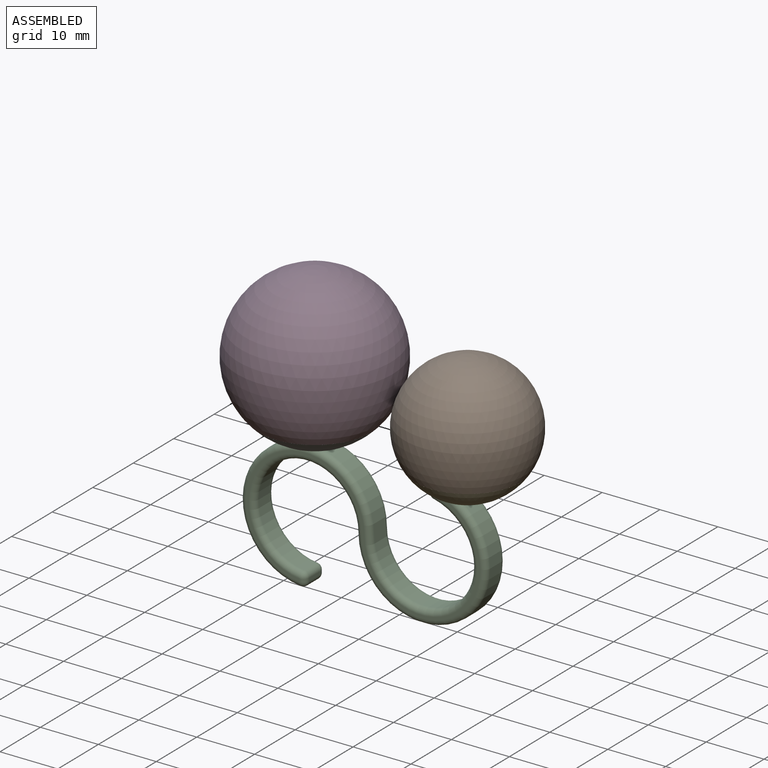
[diagram: assembled view]
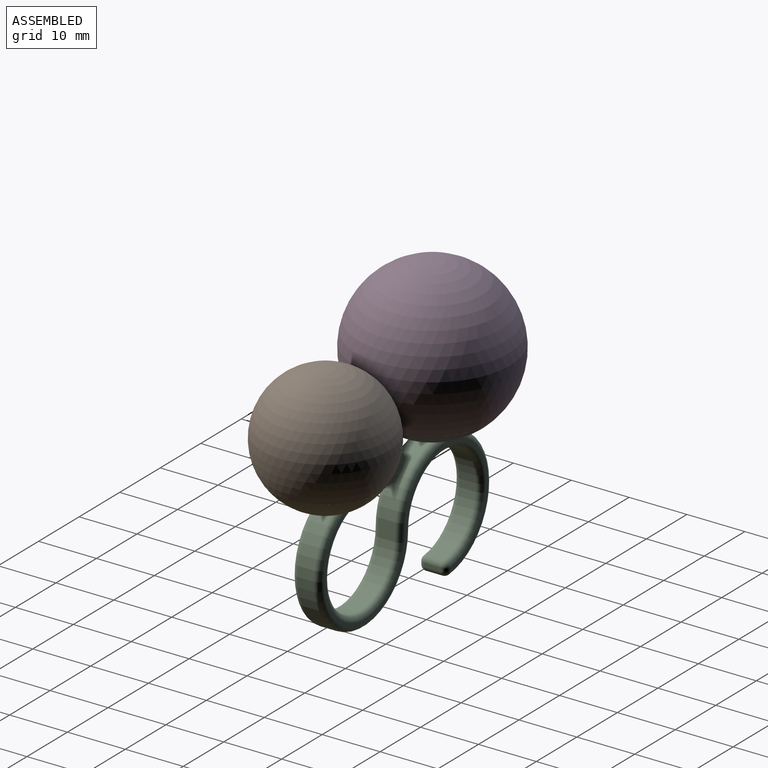
[diagram: assembled view, second angle]
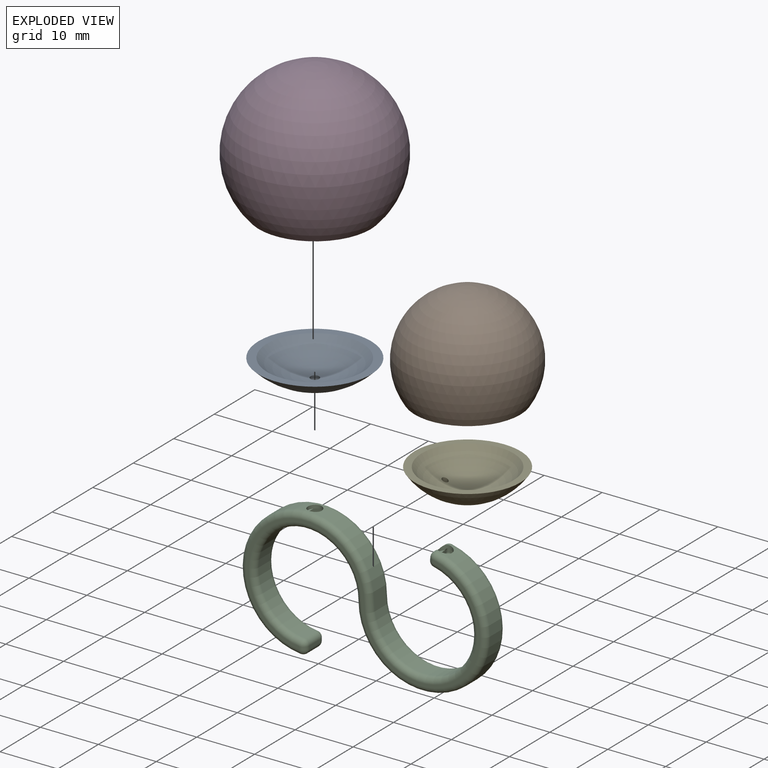
[diagram: exploded view]
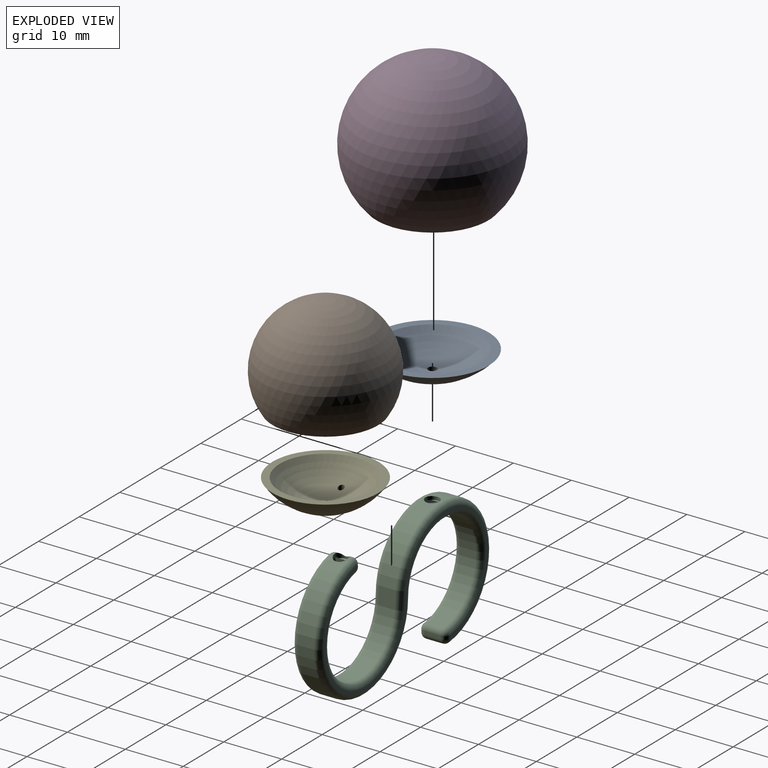
[diagram: exploded view, second angle]
ASSEMBLY  parts=5 mates=4
PART A: 5 faces, bbox 19.4x19.4x4 mm
  f0: sphere r=13.5mm, area 337mm2, adj f1,f3
  f1: plane 19.43x19.43mm, normal (0,0,1), area 81.7mm2, adj f0,f2
  f2: sphere r=12.5mm, area 243.6mm2, adj f1,f4
  f3: plane 4.05x4.05mm, normal (0,0,-1), area 11.1mm2, adj f0,f4
  f4: cylinder r=0.76mm len=1.52mm, axis (0,0,1), area 4.1mm2, adj f2,f3
PART B: 3 faces, bbox 22x22x17.1 mm
  f0: sphere r=11mm, area 1183.1mm2, adj f1
  f1: plane 18.28x18.28mm, normal (0,0,-1), area 66mm2, adj f0,f2
  f2: sphere r=10mm, area 1012.7mm2, adj f1
PART C: 70 faces, bbox 44.4x4.8x24.4 mm
  f0: cylinder r=10.65mm len=21.3mm, axis (0,1,0), area 133.8mm2, adj f7,f8,f14,f27,f32,f33,f34
  f1: plane 2.8x0.5mm, normal (-1,0,0), area 1.4mm2, adj f24,f27,f28,f31
  f2: plane 2.8x0.5mm, normal (0.99,0,-0.12), area 1.4mm2, adj f16,f19,f20,f23
  f3: torus R=9.75mm, axis (0,1,0), area 27.5mm2, adj f4,f9,f10,f30
  f4: cylinder r=9.35mm len=18.7mm, axis (0,1,0), area 120.7mm2, adj f3,f5,f11,f28
  f5: torus R=9.75mm, axis (0,1,0), area 27.5mm2, adj f4,f6,f12,f26
  f6: plane 40.5x20.5mm, normal (0,-1,0), area 45.5mm2, adj f5,f7,f12,f13,f16,f24
  f7: torus R=10.25mm, axis (0,1,0), area 30.5mm2, adj f0,f6,f13,f25
  f8: torus R=10.25mm, axis (0,1,0), area 30.5mm2, adj f0,f9,f15,f29
  f9: plane 40.5x20.5mm, normal (0,1,0), area 45.5mm2, adj f3,f8,f10,f15,f23,f31
  f10: torus R=10.25mm, axis (0,-1,0), area 29.7mm2, adj f3,f9,f11,f22
  f11: cylinder r=10.65mm len=21.3mm, axis (0,-1,0), area 131.6mm2, adj f4,f10,f12,f20,f67,f69
  f12: torus R=10.25mm, axis (0,-1,0), area 29.7mm2, adj f5,f6,f11,f18
  f13: torus R=9.75mm, axis (0,-1,0), area 26.8mm2, adj f6,f7,f14,f17
  f14: cylinder r=9.35mm len=18.7mm, axis (0,-1,0), area 117.7mm2, adj f0,f13,f15,f19
  f15: torus R=9.75mm, axis (0,-1,0), area 26.8mm2, adj f8,f9,f14,f21
  f16: cylinder r=0.4mm len=0.55mm, axis (0.12,0,0.99), area 0.3mm2, adj f2,f6,f17,f18
  f17: sphere r=0.4mm, area 0.2mm2, adj f13,f16,f19
  f18: sphere r=0.4mm, area 0.3mm2, adj f12,f16,f20
  f19: cylinder r=0.4mm len=2.8mm, axis (0,-1,0), area 1.6mm2, adj f2,f14,f17,f21
  f20: cylinder r=0.4mm len=2.8mm, axis (0,-1,0), area 0.5mm2, adj f2,f11,f18,f22,f68,f69
  f21: sphere r=0.4mm, area 0.2mm2, adj f15,f19,f23
  f22: sphere r=0.4mm, area 0.3mm2, adj f10,f20,f23
  f23: cylinder r=0.4mm len=0.55mm, axis (-0.12,0,-0.99), area 0.3mm2, adj f2,f9,f21,f22
  f24: cylinder r=0.4mm len=0.5mm, axis (0,0,-1), area 0.3mm2, adj f1,f6,f25,f26
  f25: sphere r=0.4mm, area 0.3mm2, adj f7,f24,f27
  f26: sphere r=0.4mm, area 0.2mm2, adj f5,f24,f28
  f27: cylinder r=0.4mm len=2.8mm, axis (0,1,0), area 1.9mm2, adj f0,f1,f25,f29
  f28: cylinder r=0.4mm len=2.8mm, axis (0,1,0), area 1.6mm2, adj f1,f4,f26,f30
  f29: sphere r=0.4mm, area 0.3mm2, adj f8,f27,f31
  f30: sphere r=0.4mm, area 0.2mm2, adj f3,f28,f31
  f31: cylinder r=0.4mm len=0.5mm, axis (0,0,1), area 0.3mm2, adj f1,f9,f29,f30
  f32: cylinder r=1.21mm len=2.42mm, axis (0,0,1), area 4.5mm2, adj f0,f33,f34,f42
  f33: plane 1.69x0.35mm, normal (0,0,1), area 0.4mm2, adj f0,f32
  f34: plane 1.69x0.35mm, normal (0,0,1), area 0.4mm2, adj f0,f32
  f35: plane 2.8x0.5mm, normal (1,0,0), area 1.4mm2, adj f59,f62,f63,f66
  f36: plane 2.8x0.5mm, normal (-0.99,0,0.12), area 1.4mm2, adj f51,f54,f55,f58
  f37: torus R=9.75mm, axis (0,1,0), area 66mm2, adj f38,f44,f45,f65
  f38: cylinder r=8.75mm len=17.5mm, axis (0,1,0), area 112.9mm2, adj f37,f39,f46,f63
  f39: torus R=9.75mm, axis (0,1,0), area 66mm2, adj f38,f40,f47,f61
  f40: plane 40.5x20.5mm, normal (0,1,0), area 45.5mm2, adj f39,f41,f47,f48,f51,f59
  f41: torus R=10.25mm, axis (0,1,0), area 78.9mm2, adj f40,f42,f48,f60
  f42: cylinder r=11.25mm len=22.5mm, axis (0,1,0), area 140.8mm2, adj f32,f41,f43,f49,f62
  f43: torus R=10.25mm, axis (0,1,0), area 78.9mm2, adj f42,f44,f50,f64
  f44: plane 40.5x20.5mm, normal (0,-1,0), area 45.5mm2, adj f37,f43,f45,f50,f58,f66
  f45: torus R=10.25mm, axis (0,-1,0), area 76.9mm2, adj f37,f44,f46,f57
  f46: cylinder r=11.25mm len=22.5mm, axis (0,-1,0), area 139mm2, adj f38,f45,f47,f55,f69
  f47: torus R=10.25mm, axis (0,-1,0), area 76.9mm2, adj f39,f40,f46,f53
  f48: torus R=9.75mm, axis (0,-1,0), area 64.3mm2, adj f40,f41,f49,f52
  f49: cylinder r=8.75mm len=17.5mm, axis (0,-1,0), area 110.1mm2, adj f42,f48,f50,f54
  f50: torus R=9.75mm, axis (0,-1,0), area 64.3mm2, adj f43,f44,f49,f56
  f51: cylinder r=1mm len=1.05mm, axis (0.12,0,0.99), area 0.8mm2, adj f36,f40,f52,f53
  f52: sphere r=1mm, area 1.5mm2, adj f48,f51,f54
  f53: sphere r=1mm, area 1.6mm2, adj f47,f51,f55
  f54: cylinder r=1mm len=2.8mm, axis (0,-1,0), area 4.1mm2, adj f36,f49,f52,f56
  f55: cylinder r=1mm len=2.8mm, axis (0,-1,0), area 2.4mm2, adj f36,f46,f53,f57,f69
  f56: sphere r=1mm, area 1.5mm2, adj f50,f54,f58
  f57: sphere r=1mm, area 1.6mm2, adj f45,f55,f58
  f58: cylinder r=1mm len=1.05mm, axis (-0.12,0,-0.99), area 0.8mm2, adj f36,f44,f56,f57
  f59: cylinder r=1mm len=1mm, axis (0,0,-1), area 0.8mm2, adj f35,f40,f60,f61
  f60: sphere r=1mm, area 1.6mm2, adj f41,f59,f62
  f61: sphere r=1mm, area 1.5mm2, adj f39,f59,f63
  f62: cylinder r=1mm len=2.8mm, axis (0,1,0), area 4.7mm2, adj f35,f42,f60,f64
  f63: cylinder r=1mm len=2.8mm, axis (0,1,0), area 4.1mm2, adj f35,f38,f61,f65
  f64: sphere r=1mm, area 1.7mm2, adj f43,f62,f66
  f65: sphere r=1mm, area 1.5mm2, adj f37,f63,f66
  f66: cylinder r=1mm len=1mm, axis (0,0,1), area 0.8mm2, adj f35,f44,f64,f65
  f67: plane 1.76x0.37mm, normal (0,0,1), area 0.5mm2, adj f11,f69
  f68: plane 1.98x0.5mm, normal (0,0,1), area 0.7mm2, adj f20,f69
  f69: cylinder r=1.23mm len=2.45mm, axis (0,0,1), area 4.6mm2, adj f11,f20,f46,f55,f67,f68
PART D: 3 faces, bbox 27x27x22.9 mm
  f0: sphere r=13.5mm, area 1940.3mm2, adj f1
  f1: plane 19.43x19.43mm, normal (0,0,-1), area 81.7mm2, adj f0,f2
  f2: sphere r=12.5mm, area 1718.1mm2, adj f1
PART E: 4 faces, bbox 18.3x18.3x4.9 mm
  f0: sphere r=11mm, area 336.6mm2, adj f1,f3
  f1: plane 18.28x18.28mm, normal (0,0,1), area 66mm2, adj f0,f2
  f2: sphere r=10mm, area 243.1mm2, adj f1,f3
  f3: cylinder r=0.51mm len=1.49mm, axis (0,0,1), area 3.5mm2, adj f0,f2
PLACE A t=(-9.49,-11.59,3.84)mm
PLACE B t=(16.9,-11.59,-0.28)mm fixed
PLACE C t=(-9.49,-11.59,31.7)mm
PLACE D t=(-9.49,-11.59,3.84)mm
PLACE E t=(16.9,-11.59,-0.28)mm
MATE fastened D.f1 <-> A.f4  axis (0,0,1) through (-9.49,-11.59,-5.53)mm
MATE fastened A.f4 <-> C.f32  axis (0,0,1) through (-9.49,-11.59,-8.63)mm
MATE fastened E.f3 <-> C.f69  axis (0,0,1) through (13.01,-11.59,-10)mm
MATE fastened B.f1 <-> E.f1  axis (0,0,1) through (16.9,-11.59,-6.39)mm
